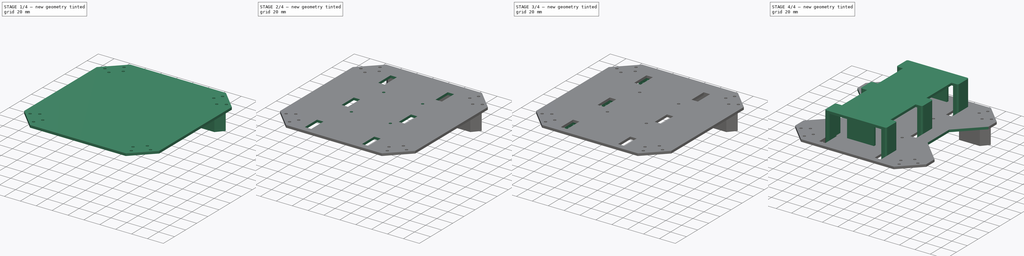
[diagram: build sequence overview — one tinted view per stage of 4, left to right]
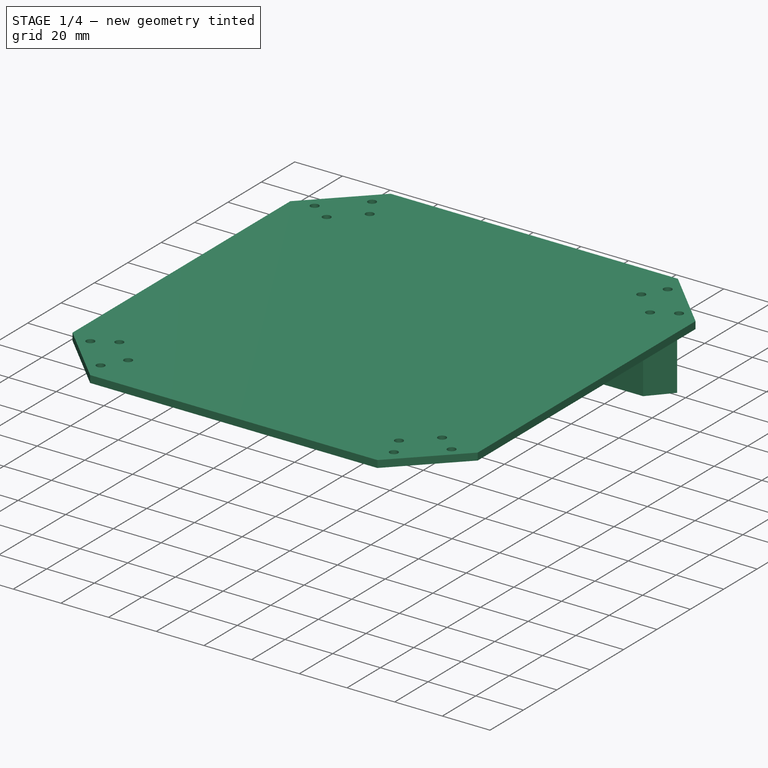
[diagram: stage 1 of 4 — iso view after this stage's code; geometry added in this stage tinted green]
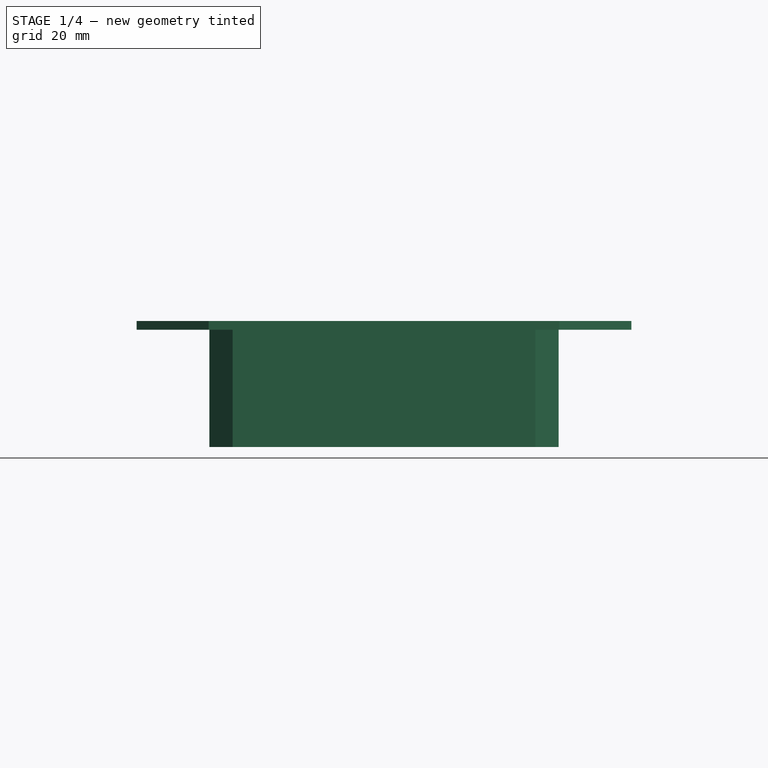
[diagram: stage 1 of 4 — front view after this stage's code; geometry added in this stage tinted green]
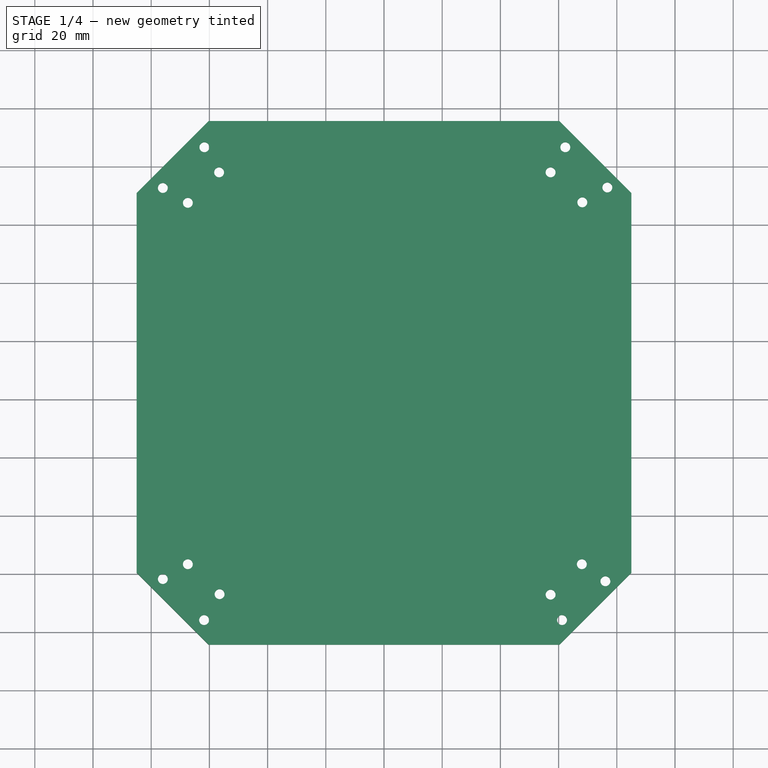
[diagram: stage 1 of 4 — top view after this stage's code; geometry added in this stage tinted green]
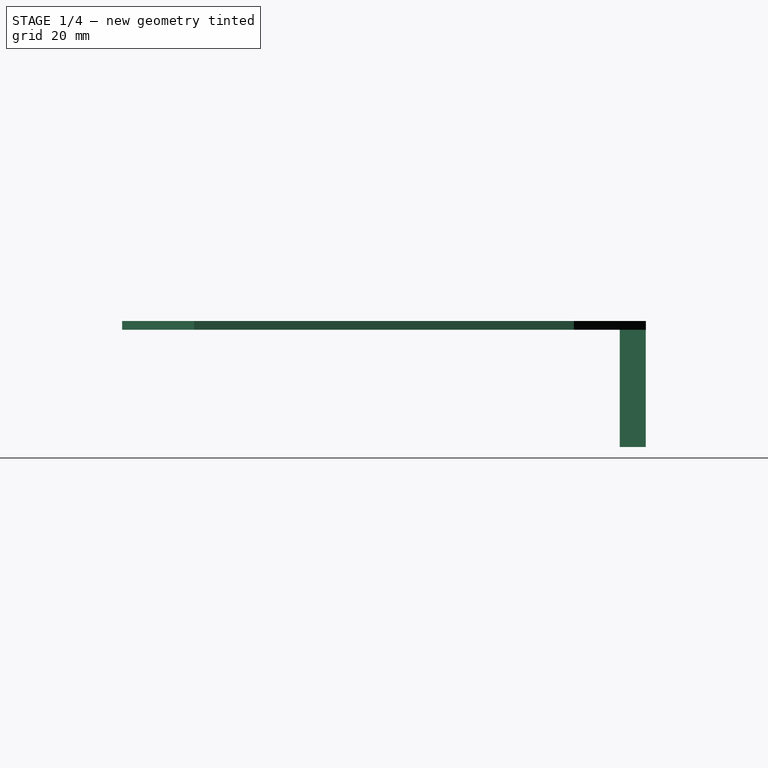
[diagram: stage 1 of 4 — right view after this stage's code; geometry added in this stage tinted green]
FCSTD DOCUMENT  (FreeCAD 1.0R39285 (Git))
Label: rr-bottom-body
License: All rights reserved
LicenseURL: http://en.wikipedia.org/wiki/All_rights_reserved
objects: Sketcher::SketchObject×10, PartDesign::Pocket×4, PartDesign::Pad×3, PartDesign::Hole×3, Spreadsheet::Sheet×1, Part::FeaturePython×1, PartDesign::Body×1
note: 52 computed .brp shape members not serialized (recipe doc carries the construction recipe); baked Part::Feature solids carry a one-line shape summary decoded from their .brp

FEATURE [Spreadsheet::Sheet] Spreadsheet
  cells = A1='offset_x; B1(offset_x)=15; A2='offset_y; B2(offset_y)=15; A3='base_x; B3(base_x)=170; A4='base_y; B4(base_y)=180; A5='base_h; B5(base_h)=183.5
FEATURE [Sketcher::SketchObject] Sketch  label="base_plate"
  ArcFitTolerance = 1e-06
  AttachmentSupport = -> [XY_Plane]
  FullyConstrained = true
  MakeInternals = false
  MapMode = 5
  expr: Constraints[12] = Spreadsheet.offset_y
  expr: Constraints[13] = Spreadsheet.offset_x
  expr: Constraints[18] = Spreadsheet.offset_x
  expr: Constraints[22] = Spreadsheet.base_x
  expr: Constraints[23] = Spreadsheet.base_y
  sketch-geometry (8):
    g0: LineSegment StartX=15 StartY=39.7487 StartZ=0 EndX=39.7487 EndY=15 EndZ=0
    g1: LineSegment StartX=39.7487 StartY=15 StartZ=0 EndX=160.251 EndY=15 EndZ=0
    g2: LineSegment StartX=160.251 StartY=15 StartZ=0 EndX=185 EndY=39.7487 EndZ=0
    g3: LineSegment StartX=185 StartY=39.7487 StartZ=0 EndX=185 EndY=170.251 EndZ=0
    g4: LineSegment StartX=185 StartY=170.251 StartZ=0 EndX=160.251 EndY=195 EndZ=0
    g5: LineSegment StartX=160.251 StartY=195 StartZ=0 EndX=39.7487 EndY=195 EndZ=0
    g6: LineSegment StartX=39.7487 StartY=195 StartZ=0 EndX=15 EndY=170.251 EndZ=0
    g7: LineSegment StartX=15 StartY=170.251 StartZ=0 EndX=15 EndY=39.7487 EndZ=0
  constraints (24):
    c: Coincident(g0,g1)
    c: Horizontal(g1)
    c: Coincident(g1,g2)
    c: Coincident(g2,g3)
    c: Vertical(g3)
    c: Coincident(g3,g4)
    c: Coincident(g4,g5)
    c: Horizontal(g5)
    c: Coincident(g5,g6)
    c: Coincident(g6,g7)
    c: Coincident(g7,g0)
    c: Distance(g0,g0) = 35
    c: DistanceY(g-1,g0) = 15
    c: DistanceX(g-1,g6) = 15
    c: Angle(g1,g0) = 2.35619
    c: Equal(g0,g6)
    c: Equal(g6,g4)
    c: Equal(g4,g2)
    c: DistanceX(g-1,g0) = 15
    c: Horizontal(g2,g0)
    c: Horizontal(g6,g3)
    c: Vertical(g5,g0)
    c: DistanceX(g0,g2) = 170
    c: DistanceY(g0,g5) = 180
FEATURE [Sketcher::SketchObject] Sketch001  label="engine_arm_holes"
  ArcFitTolerance = 1e-06
  AttachmentSupport = -> [XY_Plane]
  FullyConstrained = true
  MakeInternals = false
  MapMode = 5
  expr: Constraints[13] = Spreadsheet.base_x - 47
  expr: Constraints[21] = Spreadsheet.base_h
  expr: Constraints[22] = Spreadsheet.base_h
  expr: Constraints[42] = Spreadsheet.base_h
  expr: Constraints[43] = Spreadsheet.base_h
  expr: Constraints[44] = 10
  sketch-geometry (16):
    g0: Circle CenterX=32.5993 CenterY=42.7041 CenterZ=0 NormalX=0 NormalY=0 NormalZ=1 AngleXU=0 Radius=1.5
    g1: Circle CenterX=43.5 CenterY=32.4 CenterZ=0 NormalX=0 NormalY=0 NormalZ=1 AngleXU=0 Radius=1.5
    g2: Circle CenterX=24 CenterY=37.6 CenterZ=0 NormalX=0 NormalY=0 NormalZ=1 AngleXU=0 Radius=1.5
    g3: Circle CenterX=38.1841 CenterY=23.5 CenterZ=0 NormalX=0 NormalY=0 NormalZ=1 AngleXU=0 Radius=1.5
    g4: Circle CenterX=161.184 CenterY=23.5 CenterZ=0 NormalX=0 NormalY=0 NormalZ=1 AngleXU=0 Radius=1.5
    g5: Circle CenterX=176.085 CenterY=36.8406 CenterZ=0 NormalX=0 NormalY=0 NormalZ=1 AngleXU=0 Radius=1.5
    g6: Circle CenterX=167.984 CenterY=42.7041 CenterZ=0 NormalX=0 NormalY=0 NormalZ=1 AngleXU=0 Radius=1.5
    g7: Circle CenterX=168.148 CenterY=167.067 CenterZ=0 NormalX=0 NormalY=0 NormalZ=1 AngleXU=0 Radius=1.5
    g8: Circle CenterX=157.247 CenterY=177.371 CenterZ=0 NormalX=0 NormalY=0 NormalZ=1 AngleXU=0 Radius=1.5
    g9: Circle CenterX=162.301 CenterY=186 CenterZ=0 NormalX=0 NormalY=0 NormalZ=1 AngleXU=0 Radius=1.5
    g10: Circle CenterX=176.748 CenterY=172.17 CenterZ=0 NormalX=0 NormalY=0 NormalZ=1 AngleXU=0 Radius=1.5
    g11: Circle CenterX=32.5993 CenterY=166.896 CenterZ=0 NormalX=0 NormalY=0 NormalZ=1 AngleXU=0 Radius=1.5
    g12: Circle CenterX=43.3361 CenterY=177.371 CenterZ=0 NormalX=0 NormalY=0 NormalZ=1 AngleXU=0 Radius=1.5
    g13: Circle CenterX=38.2829 CenterY=186 CenterZ=0 NormalX=0 NormalY=0 NormalZ=1 AngleXU=0 Radius=1.5
    g14: Circle CenterX=24 CenterY=172 CenterZ=0 NormalX=0 NormalY=0 NormalZ=1 AngleXU=0 Radius=1.5
    g15: Circle CenterX=157.247 CenterY=32.2293 CenterZ=0 NormalX=0 NormalY=0 NormalZ=1 AngleXU=0 Radius=1.5
  constraints (48):
    c: Equal(g1,g0)
    c: Equal(g0,g2)
    c: Equal(g2,g3)
    c: Distance(g3,g2) = 20
    c: Distance(g0,g1) = 15
    c: Radius(g2) = 1.5
    c: Distance(g2,g0) = 10
    c: DistanceY(g-1,g2) = 37.6
    c: DistanceX(g-1,g2) = 24
    c: DistanceY(g-1,g3) = 23.5
    c: DistanceY(g-1,g1) = 32.4
    c: DistanceX(g-1,g1) = 43.5
    c: Horizontal(g4,g3)
    c: DistanceX(g3,g4) = 123
    c: Horizontal(g0,g6)
    c: Distance(g4,g5) = 20
    c: Equal(g10,g8)
    c: Equal(g8,g9)
    c: Distance(g10,g9) = 20
    c: Distance(g7,g8) = 15
    c: Distance(g7,g10) = 10
    c: Distance(g1,g7) = 183.5
    c: Distance(g8,g0) = 183.5
    c: Distance(g8,g9) = 10
    c: Equal(g8,g12)
    c: Equal(g12,g13)
    c: Equal(g13,g11)
    c: Vertical(g2,g14)
    c: Vertical(g0,g11)
    c: Distance(g14,g13) = 20
    c: Distance(g11,g12) = 15
    c: Distance(g14,g11) = 10
    c: Distance(g13,g12) = 10
    c: DistanceY(g-1,g14) = 172
    c: DistanceY(g-1,g13) = 186
    c: Horizontal(g8,g12)
    c: Horizontal(g9,g13)
    c: Equal(g1,g4)
    c: Equal(g4,g15)
    c: Equal(g15,g5)
    c: Equal(g5,g6)
    c: Distance(g15,g6) = 15
    c: Distance(g11,g15) = 183.5
    c: Distance(g6,g12) = 183.5
    c: Distance(g5,g6) = 10
    c: Equal(g10,g7)
    c: Equal(g9,g1)
    c: Equal(g13,g14)
FEATURE [Sketcher::SketchObject] Sketch002  label="mounting_plate"
  ArcFitTolerance = 1e-06
  AttachmentSupport = -> [XY_Plane]
  FullyConstrained = true
  MakeInternals = false
  MapMode = 5
  expr: Constraints[11] = Spreadsheet.base_x - 33 * 2
  expr: Constraints[8] = Spreadsheet.offset_x + 25
  expr: Constraints[9] = Spreadsheet.offset_x + 33
  sketch-geometry (4):
    g0: LineSegment StartX=40 StartY=194.944 StartZ=0 EndX=48 EndY=186 EndZ=0
    g1: LineSegment StartX=48 StartY=186 StartZ=0 EndX=152 EndY=186 EndZ=0
    g2: LineSegment StartX=152 StartY=186 StartZ=0 EndX=160 EndY=194.944 EndZ=0
    g3: LineSegment StartX=160 StartY=194.944 StartZ=0 EndX=40 EndY=194.944 EndZ=0
  constraints (12):
    c: Coincident(g0,g1)
    c: Horizontal(g1)
    c: Coincident(g1,g2)
    c: Coincident(g2,g3)
    c: Coincident(g3,g0)
    c: Horizontal(g3)
    c: Distance(g0,g0) = 12
    c: Equal(g0,g2)
    c: DistanceX(g-1,g0) = 40
    c: DistanceX(g-1,g0) = 48
    c: DistanceY(g-1,g0) = 186
    c: DistanceX(g0,g1) = 104
FEATURE [PartDesign::Pad] Pad
  Direction = (0,0,1)
  Length = 3
  Length2 = 10
  Profile = -> Sketch
  ReferenceAxis = -> Sketch [N_Axis]
  Suppressed = false
  Type = 0
FEATURE [PartDesign::Pad] Pad001
  BaseFeature = -> Pad
  Direction = (0,0,1)
  Length = 40.3
  Length2 = 10
  Profile = -> Sketch002
  ReferenceAxis = -> Sketch002 [N_Axis]
  Reversed = true
  Suppressed = false
  Type = 0
FEATURE [PartDesign::Hole] Hole
  BaseFeature = -> Pad001
  CustomThreadClearance = 0
  Depth = 507.719
  DepthType = 1
  Diameter = 3.4
  DrillForDepth = false
  DrillPoint = 1
  DrillPointAngle = 118
  HoleCutCountersinkAngle = 90
  HoleCutCustomValues = false
  HoleCutDepth = 0
  HoleCutDiameter = 6.1
  HoleCutType = 0
  ModelThread = false
  Profile = -> Sketch001
  Reversed = true
  Suppressed = false
  Tapered = false
  TaperedAngle = 90
  ThreadClass = 0
  ThreadDepth = 507.719
  ThreadDepthType = 0
  ThreadDirection = 0
  ThreadFit = 0
  ThreadSize = 9
  ThreadType = 2
  Threaded = false
  UseCustomThreadClearance = false
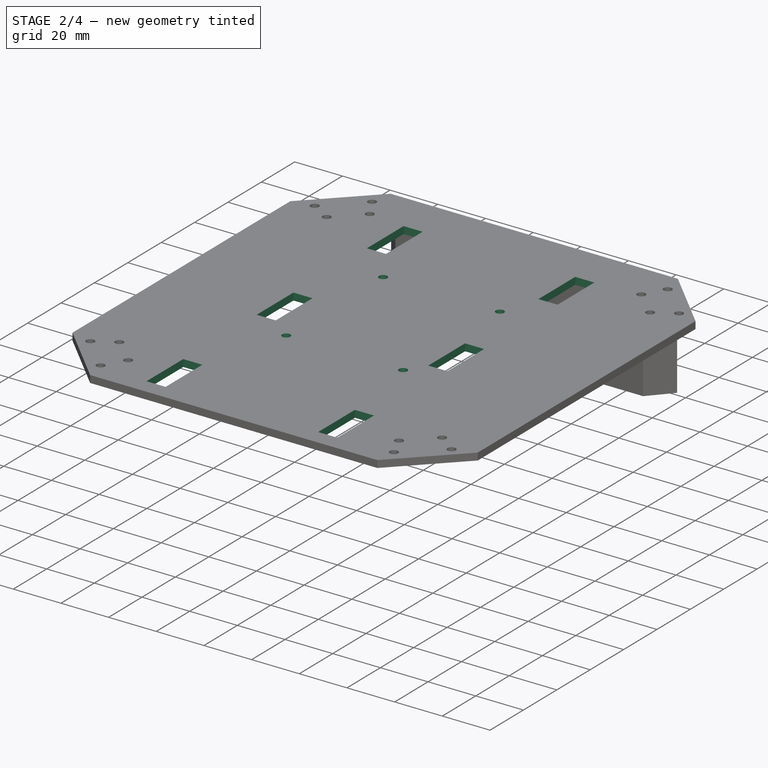
[diagram: stage 2 of 4 — iso view after this stage's code; geometry added in this stage tinted green]
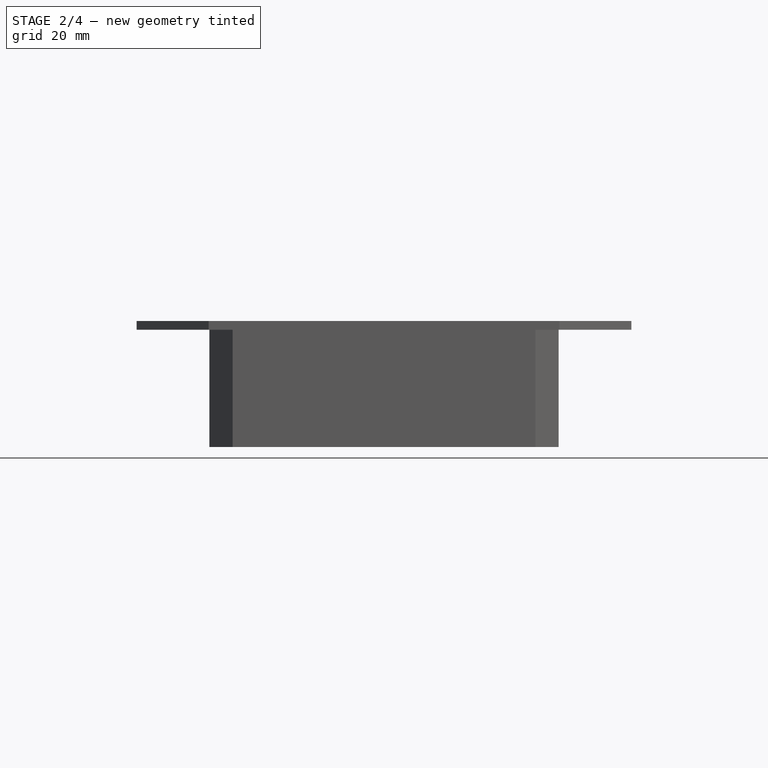
[diagram: stage 2 of 4 — front view after this stage's code; geometry added in this stage tinted green]
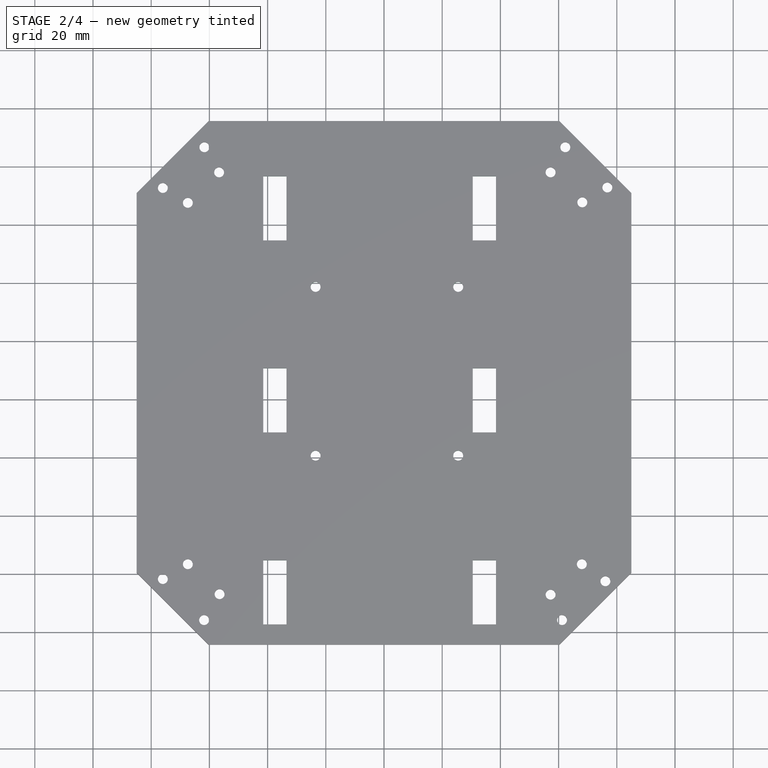
[diagram: stage 2 of 4 — top view after this stage's code; geometry added in this stage tinted green]
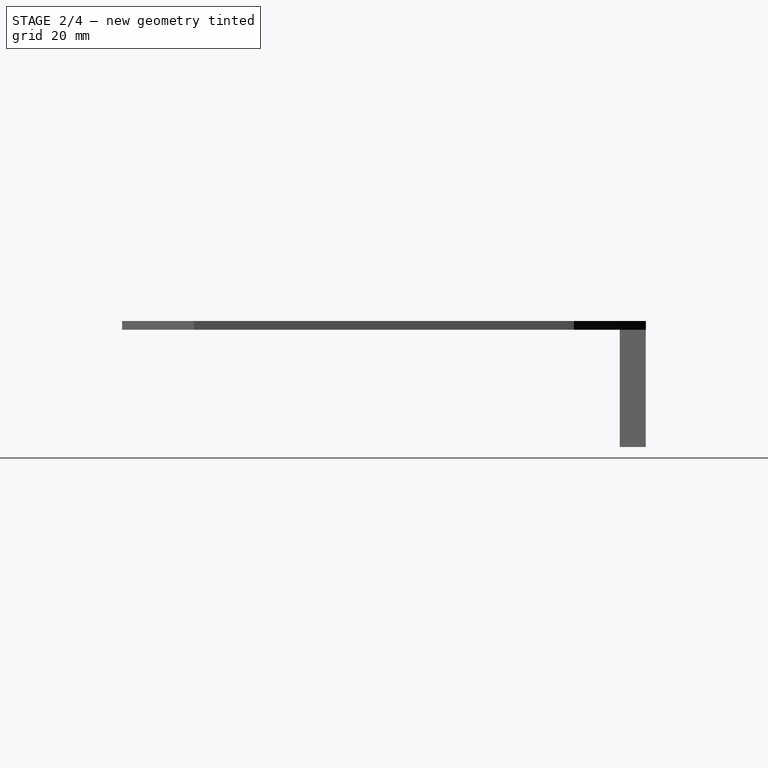
[diagram: stage 2 of 4 — right view after this stage's code; geometry added in this stage tinted green]
FEATURE [Sketcher::SketchObject] Sketch008  label="pi_mounts"
  ArcFitTolerance = 1e-06
  AttachmentSupport = -> [XY_Plane]
  FullyConstrained = true
  MakeInternals = false
  MapMode = 5
  expr: Constraints[10] = Spreadsheet.offset_x + Spreadsheet.base_x / 2 - 47 / 2
  sketch-geometry (4):
    g0: Circle CenterX=76.5 CenterY=138 CenterZ=0 NormalX=0 NormalY=0 NormalZ=1 AngleXU=0 Radius=1.75
    g1: Circle CenterX=125.5 CenterY=138 CenterZ=0 NormalX=0 NormalY=0 NormalZ=1 AngleXU=0 Radius=1.75
    g2: Circle CenterX=76.5 CenterY=80 CenterZ=0 NormalX=0 NormalY=0 NormalZ=1 AngleXU=0 Radius=1.75
    g3: Circle CenterX=125.5 CenterY=80 CenterZ=0 NormalX=0 NormalY=0 NormalZ=1 AngleXU=0 Radius=1.75
  constraints (12):
    c: DistanceX(g2,g3) = 49
    c: Horizontal(g2,g3)
    c: Vertical(g2,g0)
    c: Vertical(g1,g3)
    c: Horizontal(g0,g1)
    c: DistanceY(g2,g0) = 58
    c: Diameter(g0) = 3.5
    c: Equal(g0,g1)
    c: Equal(g1,g2)
    c: Equal(g2,g3)
    c: DistanceX(g-1,g2) = 76.5
    c: DistanceY(g-1,g2) = 80
FEATURE [PartDesign::Hole] Hole001
  BaseFeature = -> Hole
  CustomThreadClearance = 0
  Depth = 507.719
  DepthType = 1
  Diameter = 3.4
  DrillForDepth = false
  DrillPoint = 1
  DrillPointAngle = 118
  HoleCutCountersinkAngle = 90
  HoleCutCustomValues = false
  HoleCutDepth = 0
  HoleCutDiameter = 6.1
  HoleCutType = 0
  ModelThread = false
  Profile = -> Sketch008
  Reversed = true
  Suppressed = false
  Tapered = false
  TaperedAngle = 90
  ThreadClass = 0
  ThreadDepth = 507.719
  ThreadDepthType = 0
  ThreadDirection = 0
  ThreadFit = 0
  ThreadSize = 9
  ThreadType = 1
  Threaded = false
  UseCustomThreadClearance = false
FEATURE [Sketcher::SketchObject] Sketch009
  ArcFitTolerance = 1e-06
  AttachmentSupport = -> [XY_Plane]
  FullyConstrained = true
  MakeInternals = false
  MapMode = 5
  expr: Constraints[10] = Spreadsheet.offset_y + Spreadsheet.base_y - 5
  expr: Constraints[11] = Spreadsheet.offset_x + Spreadsheet.base_x / 2 - 53 / 2
  sketch-geometry (4):
    g0: LineSegment StartX=73.5 StartY=193 StartZ=0 EndX=73.5 EndY=190 EndZ=0
    g1: LineSegment StartX=73.5 StartY=190 StartZ=0 EndX=126.5 EndY=190 EndZ=0
    g2: LineSegment StartX=126.5 StartY=190 StartZ=0 EndX=126.5 EndY=193 EndZ=0
    g3: LineSegment StartX=126.5 StartY=193 StartZ=0 EndX=73.5 EndY=193 EndZ=0
  constraints (12):
    c: Coincident(g0,g1)
    c: Coincident(g1,g2)
    c: Coincident(g2,g3)
    c: Coincident(g3,g0)
    c: Vertical(g0)
    c: Vertical(g2)
    c: Horizontal(g1)
    c: Horizontal(g3)
    c: DistanceY(g0,g0) = 3
    c: DistanceX(g0,g2) = 53
    c: DistanceY(g-1,g0) = 190
    c: DistanceX(g-1,g0) = 73.5
FEATURE [PartDesign::Pocket] Pocket002
  BaseFeature = -> Hole001
  Direction = (0,0,-1)
  Length = 5
  Length2 = 5
  Profile = -> Sketch009
  ReferenceAxis = -> Sketch009 [N_Axis]
  Suppressed = false
  Type = 1
FEATURE [Sketcher::SketchObject] Sketch010
  ArcFitTolerance = 1e-06
  AttachmentSupport = -> [XY_Plane]
  FullyConstrained = true
  MakeInternals = false
  MapMode = 5
  sketch-geometry (24):
    g0: LineSegment StartX=58.5 StartY=44 StartZ=0 EndX=58.5 EndY=22 EndZ=0
    g1: LineSegment StartX=58.5 StartY=22 StartZ=0 EndX=66.5 EndY=22 EndZ=0
    g2: LineSegment StartX=66.5 StartY=22 StartZ=0 EndX=66.5 EndY=44 EndZ=0
    g3: LineSegment StartX=66.5 StartY=44 StartZ=0 EndX=58.5 EndY=44 EndZ=0
    g4: LineSegment StartX=130.5 StartY=44 StartZ=0 EndX=130.5 EndY=22 EndZ=0
    g5: LineSegment StartX=130.5 StartY=22 StartZ=0 EndX=138.5 EndY=22 EndZ=0
    g6: LineSegment StartX=138.5 StartY=22 StartZ=0 EndX=138.5 EndY=44 EndZ=0
    g7: LineSegment StartX=138.5 StartY=44 StartZ=0 EndX=130.5 EndY=44 EndZ=0
    g8: LineSegment StartX=130.5 StartY=110 StartZ=0 EndX=130.5 EndY=88 EndZ=0
    g9: LineSegment StartX=130.5 StartY=88 StartZ=0 EndX=138.5 EndY=88 EndZ=0
    g10: LineSegment StartX=138.5 StartY=88 StartZ=0 EndX=138.5 EndY=110 EndZ=0
    g11: LineSegment StartX=138.5 StartY=110 StartZ=0 EndX=130.5 EndY=110 EndZ=0
    g12: LineSegment StartX=130.5 StartY=176 StartZ=0 EndX=130.5 EndY=154 EndZ=0
    g13: LineSegment StartX=130.5 StartY=154 StartZ=0 EndX=138.5 EndY=154 EndZ=0
    g14: LineSegment StartX=138.5 StartY=154 StartZ=0 EndX=138.5 EndY=176 EndZ=0
    g15: LineSegment StartX=138.5 StartY=176 StartZ=0 EndX=130.5 EndY=176 EndZ=0
    g16: LineSegment StartX=58.5 StartY=176 StartZ=0 EndX=58.5 EndY=154 EndZ=0
    g17: LineSegment StartX=58.5 StartY=154 StartZ=0 EndX=66.5 EndY=154 EndZ=0
    g18: LineSegment StartX=66.5 StartY=154 StartZ=0 EndX=66.5 EndY=176 EndZ=0
    g19: LineSegment StartX=66.5 StartY=176 StartZ=0 EndX=58.5 EndY=176 EndZ=0
    g20: LineSegment StartX=58.5 StartY=110 StartZ=0 EndX=58.5 EndY=88 EndZ=0
    g21: LineSegment StartX=58.5 StartY=88 StartZ=0 EndX=66.5 EndY=88 EndZ=0
    g22: LineSegment StartX=66.5 StartY=88 StartZ=0 EndX=66.5 EndY=110 EndZ=0
    g23: LineSegment StartX=66.5 StartY=110 StartZ=0 EndX=58.5 EndY=110 EndZ=0
  constraints (72):
    c: Coincident(g0,g1)
    c: Coincident(g1,g2)
    c: Coincident(g2,g3)
    c: Coincident(g3,g0)
    c: Vertical(g0)
    c: Vertical(g2)
    c: Horizontal(g1)
    c: Horizontal(g3)
    c: Coincident(g4,g5)
    c: Coincident(g5,g6)
    c: Coincident(g6,g7)
    c: Coincident(g7,g4)
    c: Vertical(g4)
    c: Vertical(g6)
    c: Horizontal(g5)
    c: Horizontal(g7)
    c: Coincident(g8,g9)
    c: Coincident(g9,g10)
    c: Coincident(g10,g11)
    c: Coincident(g11,g8)
    c: Vertical(g8)
    c: Vertical(g10)
    c: Horizontal(g9)
    c: Horizontal(g11)
    c: Coincident(g12,g13)
    c: Coincident(g13,g14)
    c: Coincident(g14,g15)
    c: Coincident(g15,g12)
    c: Vertical(g12)
    c: Vertical(g14)
    c: Horizontal(g13)
    c: Horizontal(g15)
    c: Coincident(g16,g17)
    c: Coincident(g17,g18)
    c: Coincident(g18,g19)
    c: Coincident(g19,g16)
    c: Vertical(g16)
    c: Vertical(g18)
    c: Horizontal(g17)
    c: Horizontal(g19)
    c: Coincident(g20,g21)
    c: Coincident(g21,g22)
    c: Coincident(g22,g23)
    c: Coincident(g23,g20)
    c: Vertical(g20)
    c: Vertical(g22)
    c: Horizontal(g21)
    c: Horizontal(g23)
    c: DistanceY(g0,g0) = 22
    c: DistanceX(g0,g1) = 8
    c: Horizontal(g2,g4)
    c: Horizontal(g4,g1)
    c: DistanceX(g4,g5) = 8
    c: DistanceX(g2,g4) = 64
    c: DistanceY(g-1,g0) = 22
    c: DistanceX(g-1,g0) = 58.5
    c: Vertical(g0,g20)
    c: Vertical(g2,g21)
    c: Vertical(g4,g8)
    c: Vertical(g6,g9)
    c: Vertical(g10,g13)
    c: Vertical(g8,g12)
    c: Vertical(g22,g17)
    c: Vertical(g20,g16)
    c: DistanceY(g20,g20) = 22
    c: Horizontal(g8,g22)
    c: Horizontal(g21,g8)
    c: DistanceY(g0,g20) = 44
    c: DistanceY(g20,g16) = 44
    c: Horizontal(g17,g12)
    c: Horizontal(g18,g12)
    c: DistanceY(g16,g16) = 22
FEATURE [PartDesign::Pocket] Pocket
  BaseFeature = -> Pocket002
  Direction = (0,0,-1)
  Length = 5
  Length2 = 5
  Profile = -> Sketch010
  ReferenceAxis = -> Sketch010 [N_Axis]
  Reversed = true
  Suppressed = false
  Type = 1
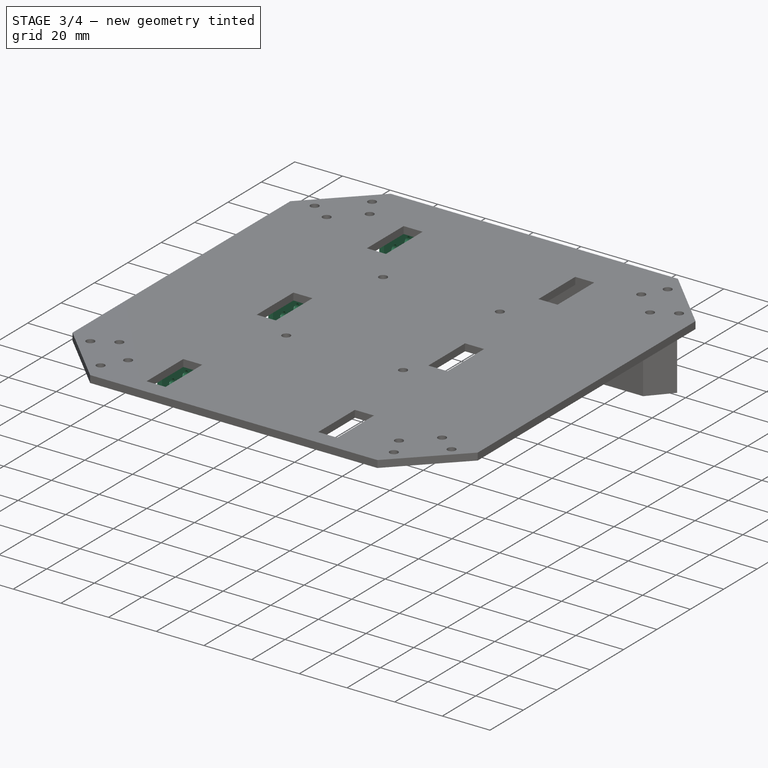
[diagram: stage 3 of 4 — iso view after this stage's code; geometry added in this stage tinted green]
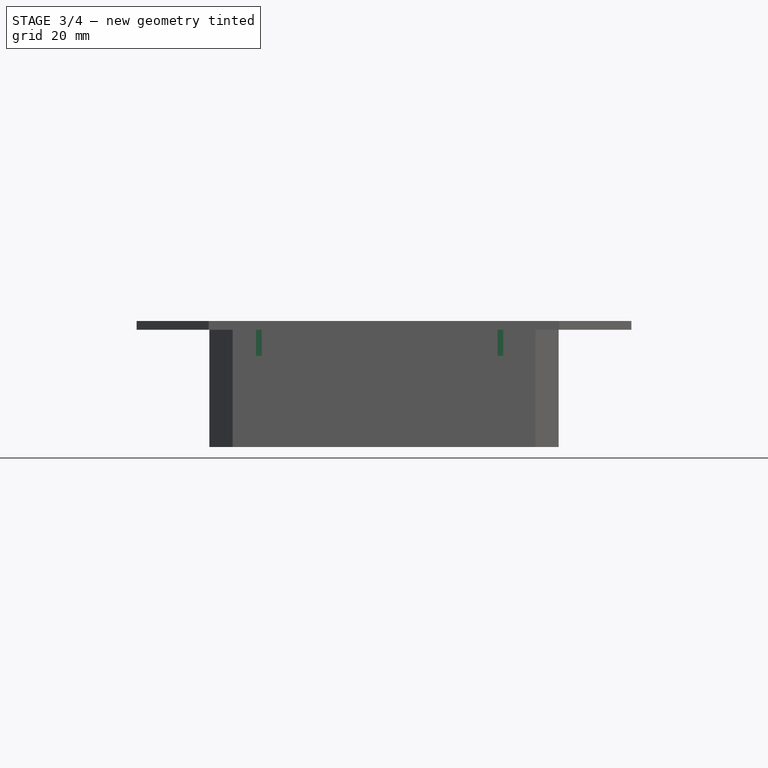
[diagram: stage 3 of 4 — front view after this stage's code; geometry added in this stage tinted green]
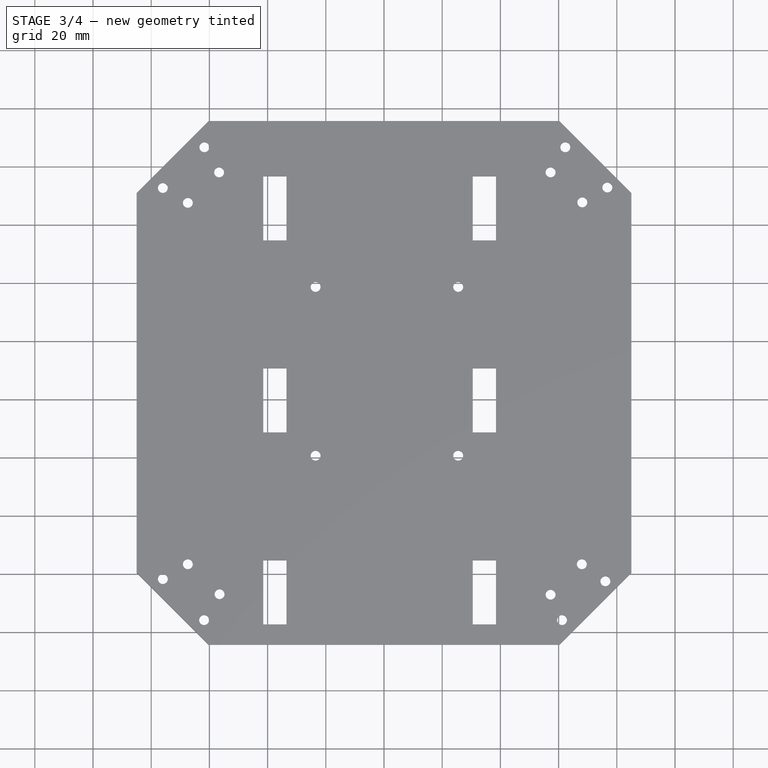
[diagram: stage 3 of 4 — top view after this stage's code; geometry added in this stage tinted green]
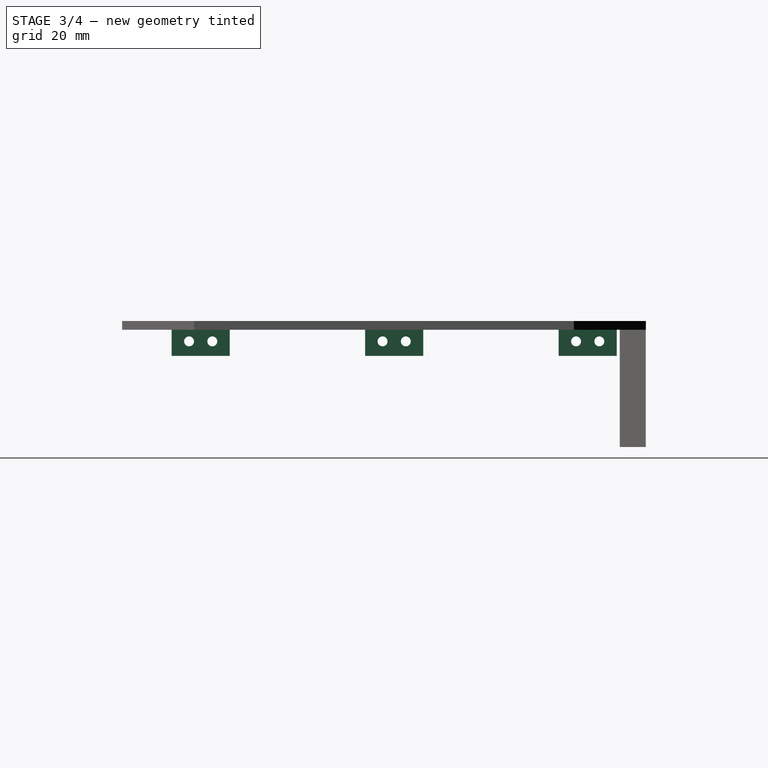
[diagram: stage 3 of 4 — right view after this stage's code; geometry added in this stage tinted green]
FEATURE [Sketcher::SketchObject] Sketch011
  ArcFitTolerance = 1e-06
  AttachmentSupport = -> [XY_Plane]
  FullyConstrained = true
  MakeInternals = false
  MapMode = 5
  sketch-geometry (24):
    g0: LineSegment StartX=58 StartY=165 StartZ=0 EndX=58 EndY=185 EndZ=0
    g1: LineSegment StartX=58 StartY=185 StartZ=0 EndX=56 EndY=185 EndZ=0
    g2: LineSegment StartX=56 StartY=185 StartZ=0 EndX=56 EndY=165 EndZ=0
    g3: LineSegment StartX=56 StartY=165 StartZ=0 EndX=58 EndY=165 EndZ=0
    g4: LineSegment StartX=58 StartY=32 StartZ=0 EndX=58 EndY=52 EndZ=0
    g5: LineSegment StartX=58 StartY=52 StartZ=0 EndX=56 EndY=52 EndZ=0
    g6: LineSegment StartX=56 StartY=52 StartZ=0 EndX=56 EndY=32 EndZ=0
    g7: LineSegment StartX=56 StartY=32 StartZ=0 EndX=58 EndY=32 EndZ=0
    g8: LineSegment StartX=58 StartY=98.5 StartZ=0 EndX=58 EndY=118.5 EndZ=0
    g9: LineSegment StartX=58 StartY=118.5 StartZ=0 EndX=56 EndY=118.5 EndZ=0
    g10: LineSegment StartX=56 StartY=118.5 StartZ=0 EndX=56 EndY=98.5 EndZ=0
    g11: LineSegment StartX=56 StartY=98.5 StartZ=0 EndX=58 EndY=98.5 EndZ=0
    g12: LineSegment StartX=139 StartY=52 StartZ=0 EndX=139 EndY=32 EndZ=0
    g13: LineSegment StartX=139 StartY=32 StartZ=0 EndX=141 EndY=32 EndZ=0
    g14: LineSegment StartX=141 StartY=32 StartZ=0 EndX=141 EndY=52 EndZ=0
    g15: LineSegment StartX=141 StartY=52 StartZ=0 EndX=139 EndY=52 EndZ=0
    g16: LineSegment StartX=139 StartY=118.5 StartZ=0 EndX=139 EndY=98.5 EndZ=0
    g17: LineSegment StartX=139 StartY=98.5 StartZ=0 EndX=141 EndY=98.5 EndZ=0
    g18: LineSegment StartX=141 StartY=98.5 StartZ=0 EndX=141 EndY=118.5 EndZ=0
    g19: LineSegment StartX=141 StartY=118.5 StartZ=0 EndX=139 EndY=118.5 EndZ=0
    g20: LineSegment StartX=139 StartY=185 StartZ=0 EndX=139 EndY=165 EndZ=0
    g21: LineSegment StartX=139 StartY=165 StartZ=0 EndX=141 EndY=165 EndZ=0
    g22: LineSegment StartX=141 StartY=165 StartZ=0 EndX=141 EndY=185 EndZ=0
    g23: LineSegment StartX=141 StartY=185 StartZ=0 EndX=139 EndY=185 EndZ=0
  constraints (72):
    c: Coincident(g0,g1)
    c: Coincident(g1,g2)
    c: Coincident(g2,g3)
    c: Coincident(g3,g0)
    c: Vertical(g0)
    c: Vertical(g2)
    c: Horizontal(g1)
    c: Horizontal(g3)
    c: DistanceX(g1,g0) = 2
    c: DistanceY(g2,g1) = 20
    c: Coincident(g4,g5)
    c: Coincident(g5,g6)
    c: Coincident(g6,g7)
    c: Coincident(g7,g4)
    c: Vertical(g4)
    c: Vertical(g6)
    c: Horizontal(g5)
    c: Horizontal(g7)
    c: DistanceY(g6,g5) = 20
    c: Coincident(g8,g9)
    c: Coincident(g9,g10)
    c: Coincident(g10,g11)
    c: Coincident(g11,g8)
    c: Vertical(g8)
    c: Vertical(g10)
    c: Horizontal(g9)
    c: Horizontal(g11)
    c: DistanceY(g10,g9) = 20
    c: DistanceX(g-1,g4) = 58
    c: Vertical(g4,g8)
    c: Vertical(g8,g0)
    c: DistanceY(g-1,g6) = 32
    c: DistanceY(g5,g10) = 46.5
    c: DistanceY(g9,g2) = 46.5
    c: Coincident(g12,g13)
    c: Coincident(g13,g14)
    c: Coincident(g14,g15)
    c: Coincident(g15,g12)
    c: Vertical(g12)
    c: Vertical(g14)
    c: Horizontal(g13)
    c: Horizontal(g15)
    c: Coincident(g16,g17)
    c: Coincident(g17,g18)
    c: Coincident(g18,g19)
    c: Coincident(g19,g16)
    c: Vertical(g16)
    c: Vertical(g18)
    c: Horizontal(g17)
    c: Horizontal(g19)
    c: Coincident(g20,g21)
    c: Coincident(g21,g22)
    c: Coincident(g22,g23)
    c: Coincident(g23,g20)
    c: Vertical(g20)
    c: Vertical(g22)
    c: Horizontal(g21)
    c: Horizontal(g23)
    c: DistanceX(g20,g22) = 2
    c: Vertical(g12,g16)
    c: Vertical(g16,g20)
    c: Vertical(g21,g17)
    c: Vertical(g17,g14)
    c: Horizontal(g20,g0)
    c: Horizontal(g16,g8)
    c: Horizontal(g12,g4)
    c: DistanceX(g0,g20) = 81
    c: Horizontal(g16,g8)
    c: Horizontal(g12,g4)
    c: Horizontal(g20,g0)
    c: Vertical(g9,g2)
    c: Vertical(g10,g5)
FEATURE [PartDesign::Pad] Pad002
  BaseFeature = -> Pocket
  Direction = (0,0,1)
  Length = 9
  Length2 = 10
  Profile = -> Sketch011
  ReferenceAxis = -> Sketch011 [N_Axis]
  Reversed = true
  Suppressed = false
  Type = 0
FEATURE [Sketcher::SketchObject] Sketch012
  ArcFitTolerance = 1e-06
  AttachmentSupport = -> [YZ_Plane]
  FullyConstrained = true
  MakeInternals = false
  MapMode = 5
  Placement = pos=(0,0,0) rot=(0.57735,0.57735,0.57735;2.0944rad)
  sketch-geometry (6):
    g0: Circle CenterX=38 CenterY=-4 CenterZ=0 NormalX=0 NormalY=0 NormalZ=1 AngleXU=0 Radius=1.5
    g1: Circle CenterX=46 CenterY=-4 CenterZ=0 NormalX=0 NormalY=0 NormalZ=1 AngleXU=0 Radius=1.5
    g2: Circle CenterX=104.5 CenterY=-4 CenterZ=0 NormalX=0 NormalY=0 NormalZ=1 AngleXU=0 Radius=1.5
    g3: Circle CenterX=112.5 CenterY=-4 CenterZ=0 NormalX=0 NormalY=0 NormalZ=1 AngleXU=0 Radius=1.5
    g4: Circle CenterX=171 CenterY=-4 CenterZ=0 NormalX=0 NormalY=0 NormalZ=1 AngleXU=0 Radius=1.5
    g5: Circle CenterX=179 CenterY=-4 CenterZ=0 NormalX=0 NormalY=0 NormalZ=1 AngleXU=0 Radius=1.5
  constraints (18):
    c: Horizontal(g5,g4)
    c: Horizontal(g4,g3)
    c: Horizontal(g3,g2)
    c: Horizontal(g2,g1)
    c: Horizontal(g1,g0)
    c: Diameter(g0) = 3
    c: Equal(g0,g1)
    c: Equal(g1,g2)
    c: Equal(g2,g3)
    c: Equal(g3,g4)
    c: Equal(g4,g5)
    c: DistanceX(g0,g1) = 8
    c: DistanceX(g2,g3) = 8
    c: DistanceX(g4,g5) = 8
    c: DistanceX(g-1,g0) = 38
    c: DistanceY(g0,g-1) = 4
    c: DistanceX(g1,g2) = 58.5
    c: DistanceX(g3,g4) = 58.5
FEATURE [PartDesign::Hole] Hole002
  BaseFeature = -> Pad002
  CustomThreadClearance = 0
  Depth = 528.684
  DepthType = 1
  Diameter = 3.4
  DrillForDepth = false
  DrillPoint = 1
  DrillPointAngle = 118
  HoleCutCountersinkAngle = 90
  HoleCutCustomValues = false
  HoleCutDepth = 0
  HoleCutDiameter = 6.1
  HoleCutType = 0
  ModelThread = false
  Profile = -> Sketch012
  Reversed = true
  Suppressed = false
  Tapered = false
  TaperedAngle = 90
  ThreadClass = 0
  ThreadDepth = 528.684
  ThreadDepthType = 0
  ThreadDirection = 0
  ThreadFit = 0
  ThreadSize = 9
  ThreadType = 1
  Threaded = false
  UseCustomThreadClearance = false
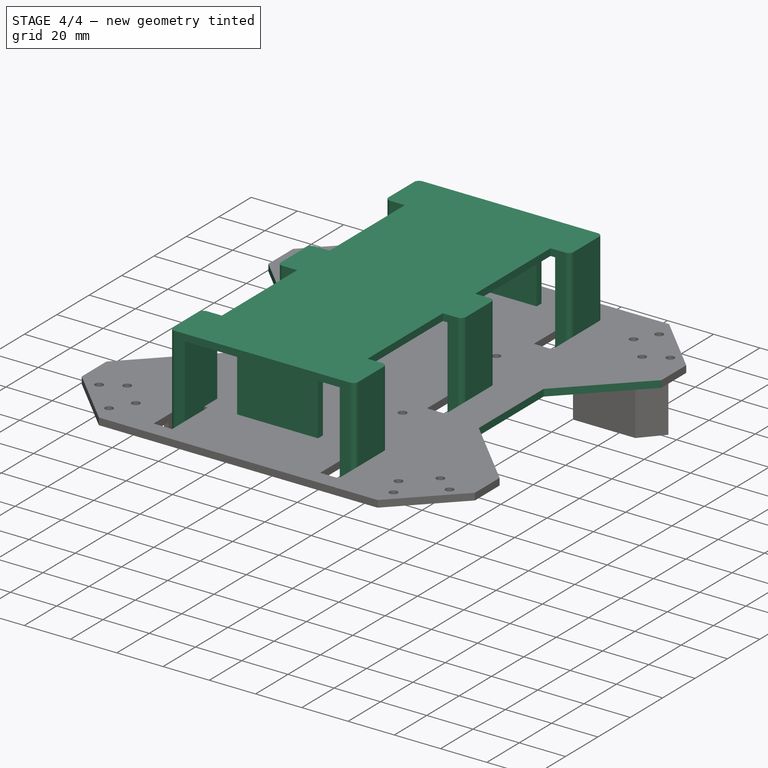
[diagram: stage 4 of 4 — iso view after this stage's code; geometry added in this stage tinted green]
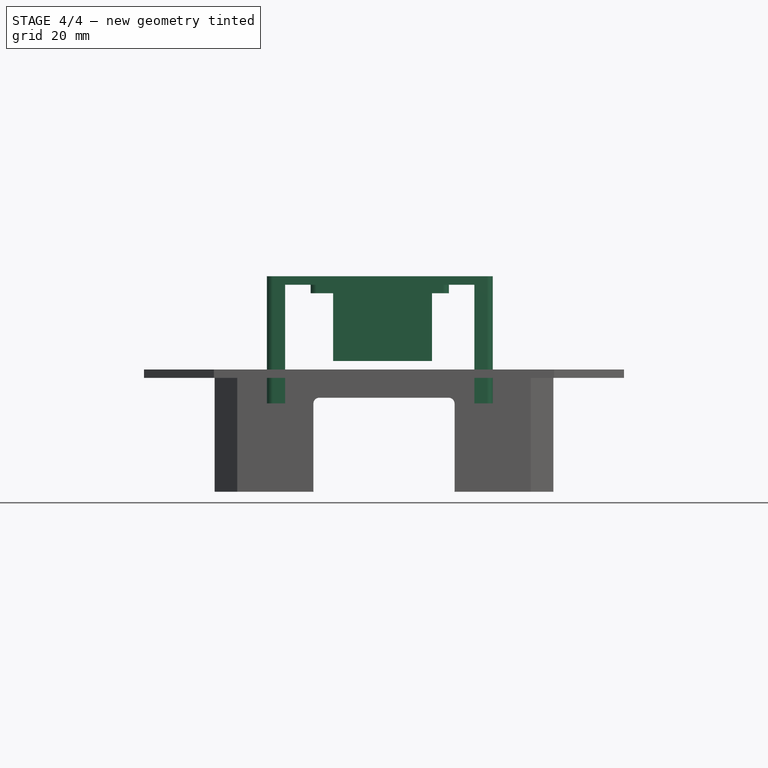
[diagram: stage 4 of 4 — front view after this stage's code; geometry added in this stage tinted green]
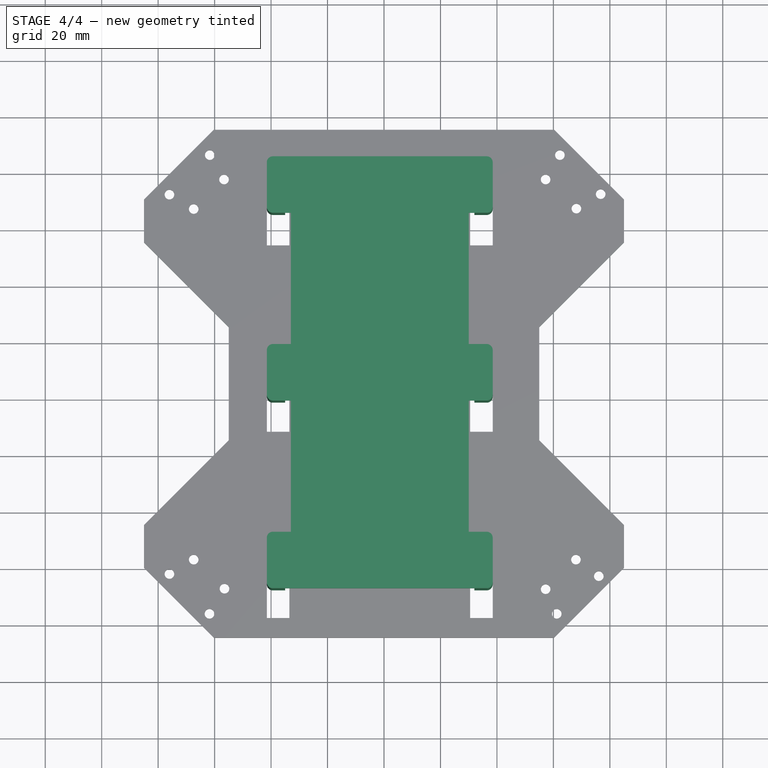
[diagram: stage 4 of 4 — top view after this stage's code; geometry added in this stage tinted green]
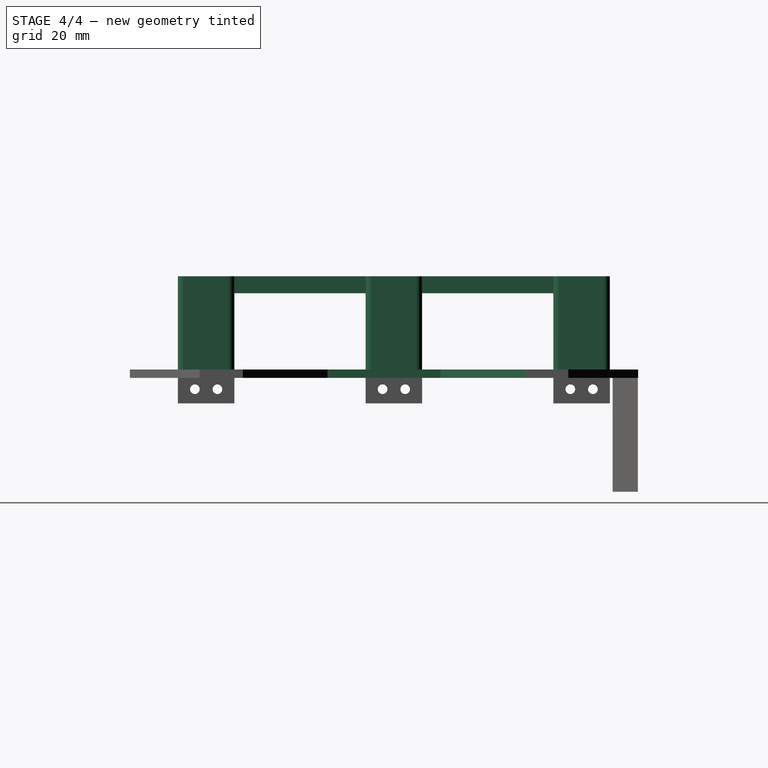
[diagram: stage 4 of 4 — right view after this stage's code; geometry added in this stage tinted green]
FEATURE [Part::FeaturePython] b_rr_battery_cnt_001_  label="rr_battery_cnt_001"  # a2plus imported part (geometry in sourceFile) (typed FeaturePython)
  Placement = pos=(65,185,36) rot=(-1,0,0;3.14159rad)
  a2p_Version = 0.4.68
  fixedPosition = true
  objectType = a2pPart
  sourceFile = ./rr_battery_cnt.FCStd
  subassemblyImport = false
  timeLastImport = 1.75472e+09
  updateColors = true
FEATURE [Sketcher::SketchObject] Sketch013
  ArcFitTolerance = 1e-06
  AttachmentSupport = -> [XY_Plane]
  FullyConstrained = true
  MakeInternals = false
  MapMode = 5
  expr: Constraints[10] = Spreadsheet.offset_y + 40
  expr: Constraints[23] = Spreadsheet.offset_y + 170
  expr: Constraints[6] = Spreadsheet.offset_x
  sketch-geometry (8):
    g0: LineSegment StartX=15 StartY=155 StartZ=0 EndX=15 EndY=55 EndZ=0
    g1: LineSegment StartX=15 StartY=55 StartZ=0 EndX=45 EndY=85 EndZ=0
    g2: LineSegment StartX=45 StartY=85 StartZ=0 EndX=45 EndY=125 EndZ=0
    g3: LineSegment StartX=45 StartY=125 StartZ=0 EndX=15 EndY=155 EndZ=0
    g4: LineSegment StartX=185 StartY=55 StartZ=0 EndX=155 EndY=85 EndZ=0
    g5: LineSegment StartX=155 StartY=85 StartZ=0 EndX=155 EndY=125 EndZ=0
    g6: LineSegment StartX=155 StartY=125 StartZ=0 EndX=185 EndY=155 EndZ=0
    g7: LineSegment StartX=185 StartY=155 StartZ=0 EndX=185 EndY=55 EndZ=0
  constraints (24):
    c: Vertical(g0)
    c: Coincident(g0,g1)
    c: Coincident(g1,g2)
    c: Vertical(g2)
    c: Coincident(g2,g3)
    c: Coincident(g3,g0)
    c: DistanceX(g-1,g0) = 15
    c: Angle(g1,g0) = 0.785398
    c: Angle(g0,g3) = 0.785398
    c: DistanceY(g0,g0) = 100
    c: DistanceY(g0) = 55
    c: DistanceX(g0,g1) = 30
    c: Coincident(g4,g5)
    c: Vertical(g5)
    c: Coincident(g5,g6)
    c: Coincident(g6,g7)
    c: Coincident(g7,g4)
    c: Vertical(g7)
    c: Horizontal(g4,g0)
    c: Horizontal(g4,g1)
    c: Horizontal(g5,g2)
    c: Horizontal(g6,g0)
    c: Equal(g4,g1)
    c: DistanceX(g-1,g4) = 185
FEATURE [PartDesign::Pocket] Pocket003
  BaseFeature = -> Hole002
  Direction = (0,0,-1)
  Length = 5
  Length2 = 5
  Profile = -> Sketch013
  ReferenceAxis = -> Sketch013 [N_Axis]
  Reversed = true
  Suppressed = false
  Type = 0
FEATURE [Sketcher::SketchObject] Sketch014
  ArcFitTolerance = 1e-06
  AttachmentSupport = -> [XZ_Plane]
  FullyConstrained = true
  MakeInternals = false
  MapMode = 5
  Placement = pos=(0,0,0) rot=(1,0,0;1.5708rad)
  sketch-geometry (12):
    g0: LineSegment StartX=75 StartY=-9.12132 StartZ=0 EndX=75 EndY=-39.8787 EndZ=0
    g1: LineSegment StartX=77.1213 StartY=-42 StartZ=0 EndX=122.879 EndY=-42 EndZ=0
    g2: LineSegment StartX=125 StartY=-39.8787 StartZ=0 EndX=125 EndY=-9.12132 EndZ=0
    g3: LineSegment StartX=122.879 StartY=-7 StartZ=0 EndX=77.1213 EndY=-7 EndZ=0
    g4: ArcOfCircle CenterX=77.1213 CenterY=-9.12132 CenterZ=0 NormalX=0 NormalY=0 NormalZ=1 AngleXU=0 Radius=2.12132 StartAngle=1.5708 EndAngle=3.14159
    g5: GeomPoint [constr] X=75 Y=-7 Z=0
    g6: ArcOfCircle CenterX=122.879 CenterY=-9.12132 CenterZ=0 NormalX=0 NormalY=0 NormalZ=1 AngleXU=0 Radius=2.12132 StartAngle=0 EndAngle=1.5708
    g7: GeomPoint [constr] X=125 Y=-7 Z=0
    g8: ArcOfCircle CenterX=122.879 CenterY=-39.8787 CenterZ=0 NormalX=0 NormalY=0 NormalZ=1 AngleXU=0 Radius=2.12132 StartAngle=4.71239 EndAngle=6.28319
    g9: GeomPoint [constr] X=125 Y=-42 Z=0
    g10: ArcOfCircle CenterX=77.1213 CenterY=-39.8787 CenterZ=0 NormalX=0 NormalY=0 NormalZ=1 AngleXU=0 Radius=2.12132 StartAngle=3.14159 EndAngle=4.71239
    g11: GeomPoint [constr] X=75 Y=-42 Z=0
  constraints (28):
    c: Vertical(g0)
    c: Vertical(g2)
    c: Horizontal(g1)
    c: Horizontal(g3)
    c: PointOnObject(g5,g0)
    c: PointOnObject(g5,g3)
    c: Tangent(g0,g4) = -1.5708
    c: Tangent(g3,g4) = -1.5708
    c: PointOnObject(g7,g3)
    c: PointOnObject(g7,g2)
    c: Tangent(g3,g6) = -1.5708
    c: Tangent(g2,g6) = -1.5708
    c: PointOnObject(g9,g2)
    c: PointOnObject(g9,g1)
    c: Tangent(g2,g8) = -1.5708
    c: Tangent(g1,g8) = -1.5708
    c: PointOnObject(g11,g0)
    c: PointOnObject(g11,g1)
    c: Tangent(g0,g10) = -1.5708
    c: Tangent(g1,g10) = -1.5708
    c: Distance(g1,g0) = 3
    c: DistanceX(g5,g7) = 50
    c: Equal(g10,g8)
    c: Equal(g8,g6)
    c: Equal(g6,g4)
    c: DistanceY(g11,g5) = 35
    c: DistanceY(g11,g-1) = 42
    c: DistanceX(g-1,g11) = 75
FEATURE [PartDesign::Pocket] Pocket004
  BaseFeature = -> Pocket003
  Direction = (0,1,-2e-16)
  Length = 5
  Length2 = 5
  Profile = -> Sketch014
  ReferenceAxis = -> Sketch014 [N_Axis]
  Suppressed = false
  Type = 1
FEATURE [PartDesign::Body] Body
  AllowCompound = false
  Group = -> [Sketch,Sketch001,Sketch002,Pad,Pad001,Hole,Sketch008,Hole001,Sketch009,Pocket002,Sketch010,Pocket,Sketch011,Pad002,Sketch012,Hole002,Sketch013,Pocket003,Sketch014,Pocket004]
  Origin = -> Origin
  Tip = -> Pocket004
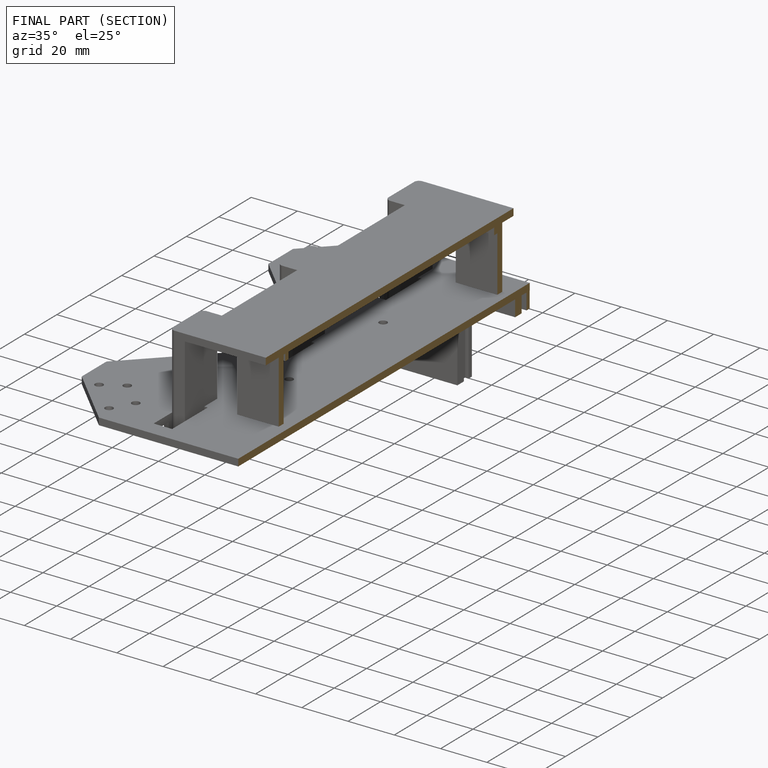
[diagram: finished part — half-section view (interior)]
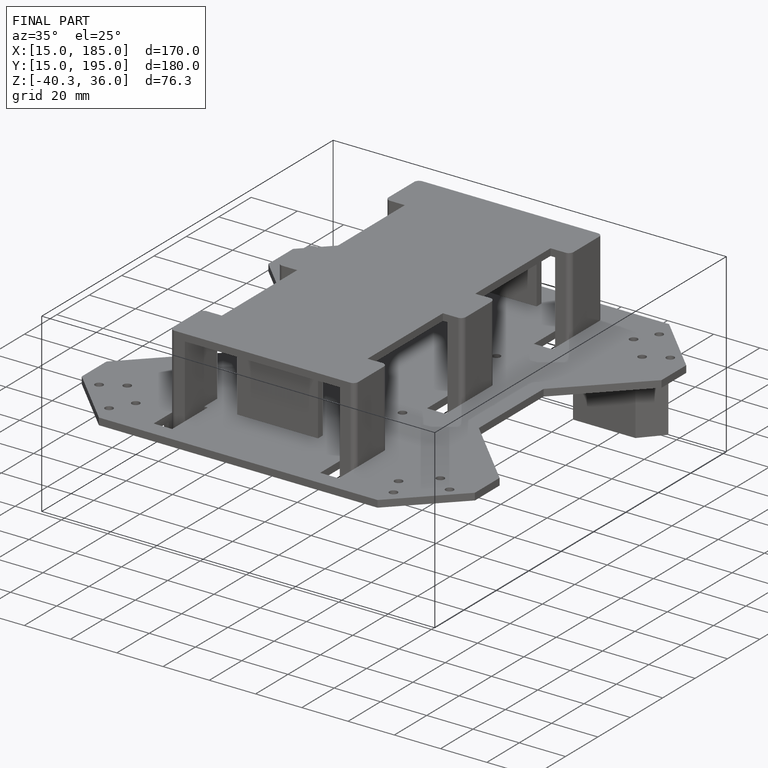
[diagram: finished part — iso view with bounding-box wireframe]
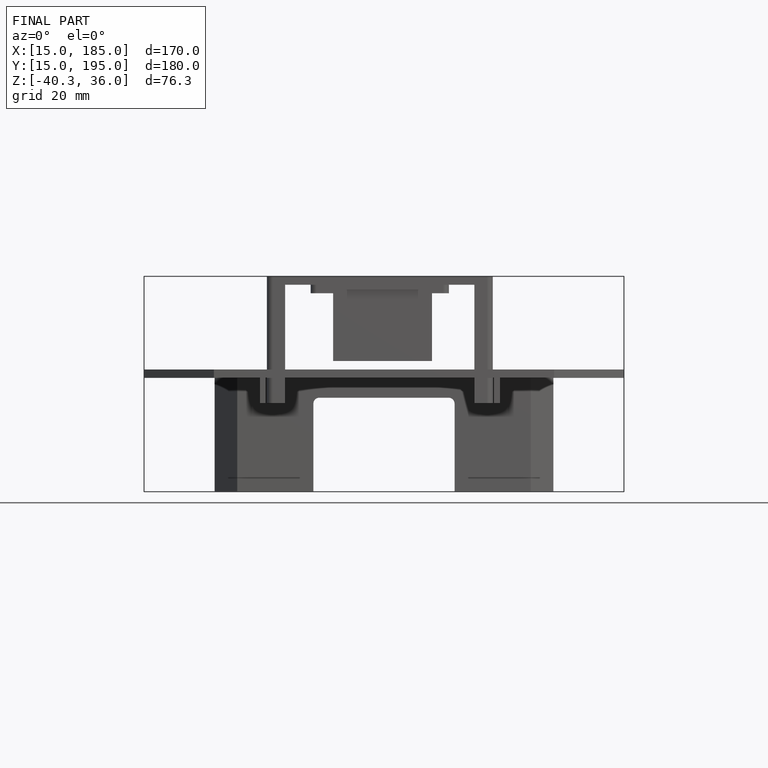
[diagram: finished part — front view with bounding-box wireframe]
